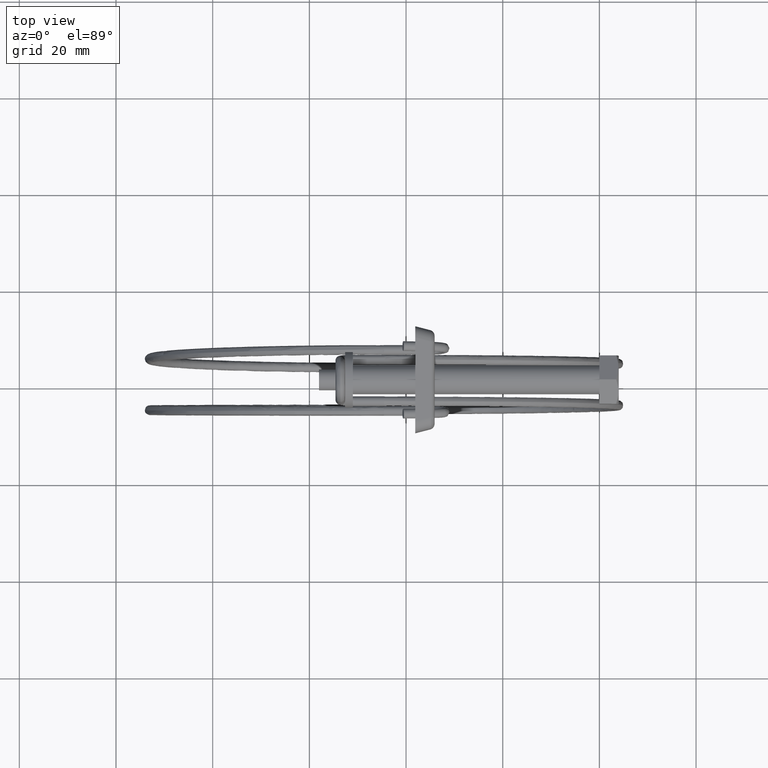
[diagram: clean part render]
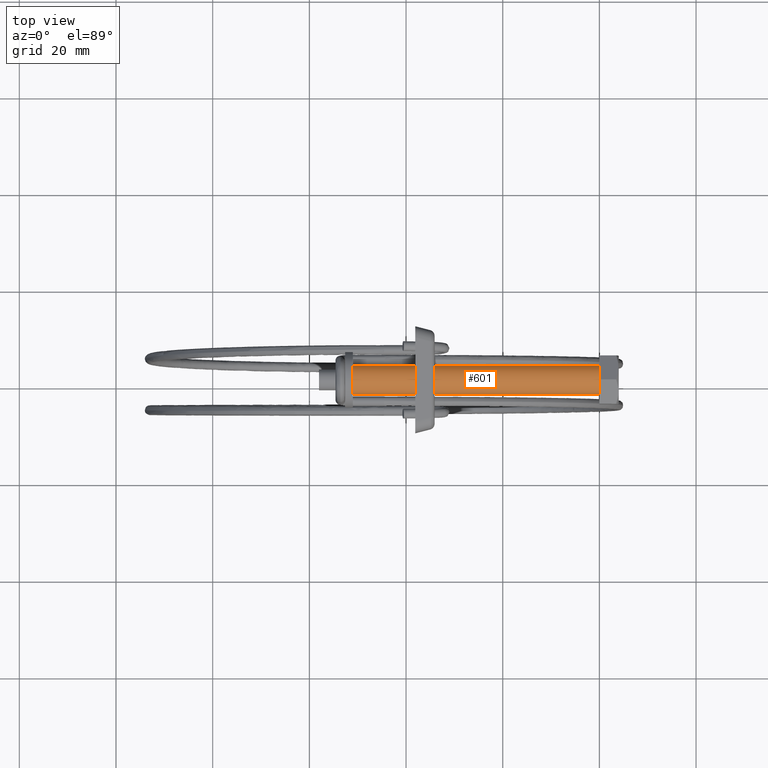
[diagram: same view with one face highlighted and labeled with its STEP entity id]
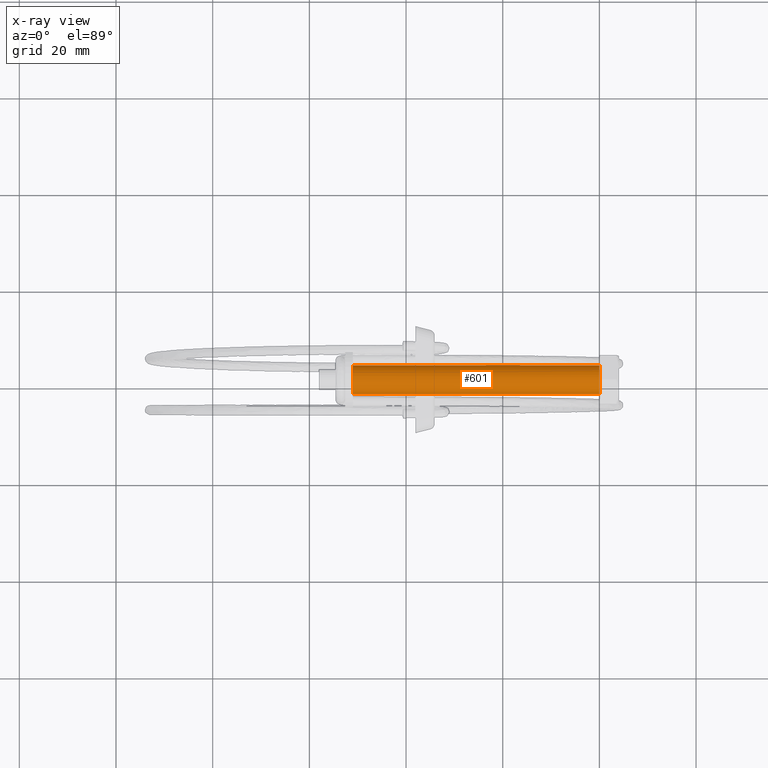
[diagram: x-ray of the same camera — body ghosted, the highlighted face saturated]
A machine part, top view. The second image highlights one B-rep face of the part: STEP entity #601.
The next image is the same camera in x-ray: the body ghosted, the highlighted face saturated — about 0% of this face is hidden behind the body in this view.
In plain terms, the highlighted face is a freeform B-spline surface patch.
Its self-contained STEP definition (entity closure, byte-faithful):
#436=CARTESIAN_POINT('',(1.740369E-015,2.976798641427167,-0.372384006635703));
#437=VERTEX_POINT('',#436);
#451=CARTESIAN_POINT('',(1.665335E-015,-2.999885769188063,0.026179607018270));
#452=VERTEX_POINT('',#451);
#468=CARTESIAN_POINT('',(-51.0,-2.999885769187746,0.026179607054622));
#469=VERTEX_POINT('',#468);
#470=CARTESIAN_POINT('',(1.665335E-015,-2.999885769188063,0.026179607018270));
#471=CARTESIAN_POINT('',(-51.0,-2.999885769187746,0.026179607054622));
#472=QUASI_UNIFORM_CURVE('',1,(#470,#471),.UNSPECIFIED.,.F.,.U.);
#473=EDGE_CURVE('',#452,#469,#472,.T.);
#492=CARTESIAN_POINT('',(-51.0,2.976798641426056,-0.372384006644589));
#493=VERTEX_POINT('',#492);
#507=CARTESIAN_POINT('',(1.740369E-015,2.976798641427167,-0.372384006635703));
#508=CARTESIAN_POINT('',(-51.0,2.976798641426056,-0.372384006644589));
#509=QUASI_UNIFORM_CURVE('',1,(#507,#508),.UNSPECIFIED.,.F.,.U.);
#510=EDGE_CURVE('',#437,#493,#509,.T.);
#515=CARTESIAN_POINT('',(1.275000000000001,-2.999885769192628,0.026179606495123));
#516=CARTESIAN_POINT('',(1.275000000000001,-2.973706162697505,3.026065375687751));
#517=CARTESIAN_POINT('',(1.275000000000001,0.026179606495123,2.999885769192628));
#518=CARTESIAN_POINT('',(1.275000000000001,3.026065375687751,2.973706162697505));
#519=CARTESIAN_POINT('',(1.275000000000001,2.999885769192628,-0.026179606495123));
#520=CARTESIAN_POINT('',(1.275000000000001,2.998369293780943,-0.199950476874528));
#521=CARTESIAN_POINT('',(1.275000000000002,2.976798641476730,-0.372384006239502));
#522=CARTESIAN_POINT('',(-52.306875000000012,-2.999885769192628,0.026179606495123));
#523=CARTESIAN_POINT('',(-52.306875000000019,-2.973706162697505,3.026065375687751));
#524=CARTESIAN_POINT('',(-52.306875000000012,0.026179606495123,2.999885769192628));
#525=CARTESIAN_POINT('',(-52.306875000000019,3.026065375687751,2.973706162697505));
#526=CARTESIAN_POINT('',(-52.306875000000012,2.999885769192628,-0.026179606495123));
#527=CARTESIAN_POINT('',(-52.306875000000005,2.998369293780943,-0.199950476874528));
#528=CARTESIAN_POINT('',(-52.306875000000005,2.976798641476730,-0.372384006239502));
#536=(BOUNDED_SURFACE()B_SPLINE_SURFACE(2,1,((#515,#522),(#516,#523),(#517,#524),(#518,#525),(#519,#526),(#520,#527),(#521,#528)),.UNSPECIFIED.,.F.,.F.,.U.)B_SPLINE_SURFACE_WITH_KNOTS((3,2,2,3),(2,2),(0.0,4.970562748477331,9.941125496954662,10.338770516832851),(0.0,53.581875000000011),.UNSPECIFIED.)GEOMETRIC_REPRESENTATION_ITEM()RATIONAL_B_SPLINE_SURFACE(((1.0,1.0),(0.707106781186548,0.707106781186548),(1.0,1.0),(0.707106781186548,0.707106781186548),(1.0,1.0),(0.976568542494924,0.976568542494924),(0.956886118190660,0.956886118190660)))REPRESENTATION_ITEM('')SURFACE());
#537=CARTESIAN_POINT('',(0.0,0.0,3.000000000000115));
#538=VERTEX_POINT('',#537);
#539=CARTESIAN_POINT('',(1.740369E-015,2.976798641427167,-0.372384006635703));
#540=CARTESIAN_POINT('',(0.0,3.000000000000116,-0.186914783001329));
#541=CARTESIAN_POINT('',(0.0,3.000000000000115,0.0));
#542=CARTESIAN_POINT('',(0.0,3.000000000000114,3.000000000000114));
#543=CARTESIAN_POINT('',(0.0,0.0,3.000000000000115));
#551=(BOUNDED_CURVE()B_SPLINE_CURVE(2,(#539,#540,#541,#542,#543),.UNSPECIFIED.,.F.,.U.)B_SPLINE_CURVE_WITH_KNOTS((3,2,3),(0.228526070984406,0.250000000000000,0.500000000000000),.UNSPECIFIED.)CURVE()GEOMETRIC_REPRESENTATION_ITEM()RATIONAL_B_SPLINE_CURVE((0.954005430187600,0.974841727240205,1.0,0.707106781186547,1.0))REPRESENTATION_ITEM(''));
#552=EDGE_CURVE('',#437,#538,#551,.T.);
#553=ORIENTED_EDGE('',*,*,#552,.F.);
#554=ORIENTED_EDGE('',*,*,#510,.T.);
#555=CARTESIAN_POINT('',(-51.0,0.0,3.000000000000115));
#556=VERTEX_POINT('',#555);
#557=CARTESIAN_POINT('',(-51.0,0.0,3.000000000000115));
#558=CARTESIAN_POINT('',(-50.999999999999993,3.000000000000114,3.000000000000114));
#559=CARTESIAN_POINT('',(-51.0,3.000000000000115,0.0));
#560=CARTESIAN_POINT('',(-51.0,3.000000000000115,-0.186914783010318));
#561=CARTESIAN_POINT('',(-51.000000000000007,2.976798641426056,-0.372384006644589));
#569=(BOUNDED_CURVE()B_SPLINE_CURVE(2,(#557,#558,#559,#560,#561),.UNSPECIFIED.,.F.,.U.)B_SPLINE_CURVE_WITH_KNOTS((3,2,3),(0.0,0.250000000000000,0.271473929016600),.UNSPECIFIED.)CURVE()GEOMETRIC_REPRESENTATION_ITEM()RATIONAL_B_SPLINE_CURVE((1.0,0.707106781186547,1.0,0.974841727239025,0.954005430185646))REPRESENTATION_ITEM(''));
#570=EDGE_CURVE('',#556,#493,#569,.T.);
#571=ORIENTED_EDGE('',*,*,#570,.F.);
#572=CARTESIAN_POINT('',(-51.000000000000007,-2.999885769187746,0.026179607054622));
#573=CARTESIAN_POINT('',(-51.000000000000007,-2.973933630675688,3.000000000000114));
#574=CARTESIAN_POINT('',(-51.0,0.0,3.000000000000115));
#582=(BOUNDED_CURVE()B_SPLINE_CURVE(2,(#572,#573,#574),.UNSPECIFIED.,.F.,.U.)B_SPLINE_CURVE_WITH_KNOTS((3,3),(0.751539894400691,1.0),.UNSPECIFIED.)CURVE()GEOMETRIC_REPRESENTATION_ITEM()RATIONAL_B_SPLINE_CURVE((0.996414027948349,0.708910879697152,1.0))REPRESENTATION_ITEM(''));
#583=EDGE_CURVE('',#469,#556,#582,.T.);
#584=ORIENTED_EDGE('',*,*,#583,.F.);
#585=ORIENTED_EDGE('',*,*,#473,.F.);
#586=CARTESIAN_POINT('',(0.0,0.0,3.000000000000115));
#587=CARTESIAN_POINT('',(0.0,-2.973933630747772,3.000000000000115));
#588=CARTESIAN_POINT('',(1.665335E-015,-2.999885769188063,0.026179607018270));
#596=(BOUNDED_CURVE()B_SPLINE_CURVE(2,(#586,#587,#588),.UNSPECIFIED.,.F.,.U.)B_SPLINE_CURVE_WITH_KNOTS((3,3),(0.500000000000000,0.748460105603578),.UNSPECIFIED.)CURVE()GEOMETRIC_REPRESENTATION_ITEM()RATIONAL_B_SPLINE_CURVE((1.0,0.708910879692150,0.996414027958229))REPRESENTATION_ITEM(''));
#597=EDGE_CURVE('',#538,#452,#596,.T.);
#598=ORIENTED_EDGE('',*,*,#597,.F.);
#599=EDGE_LOOP('',(#553,#554,#571,#584,#585,#598));
#600=FACE_OUTER_BOUND('',#599,.T.);
#601=ADVANCED_FACE('',(#600),#536,.T.);